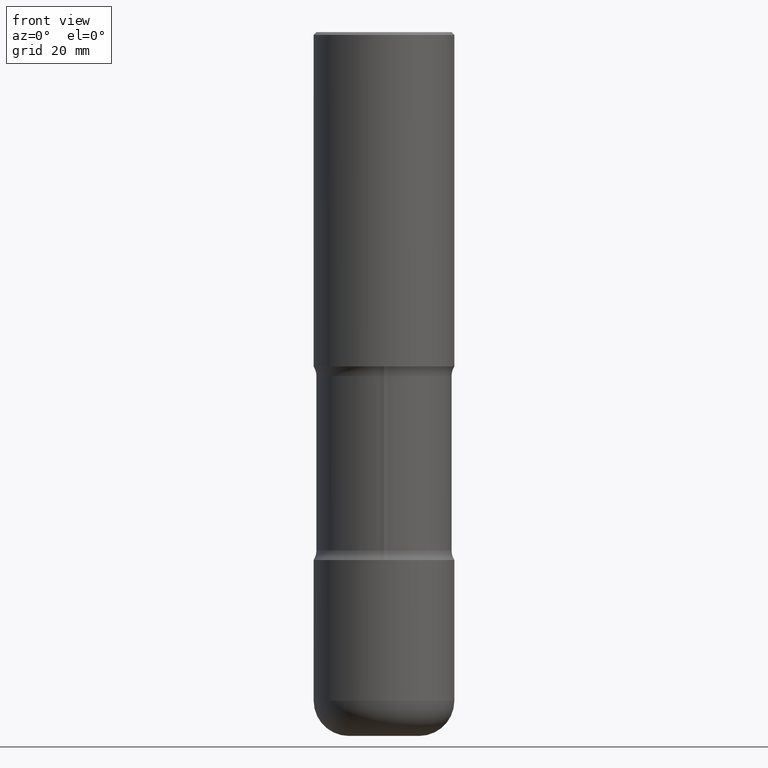
[diagram: clean part render]
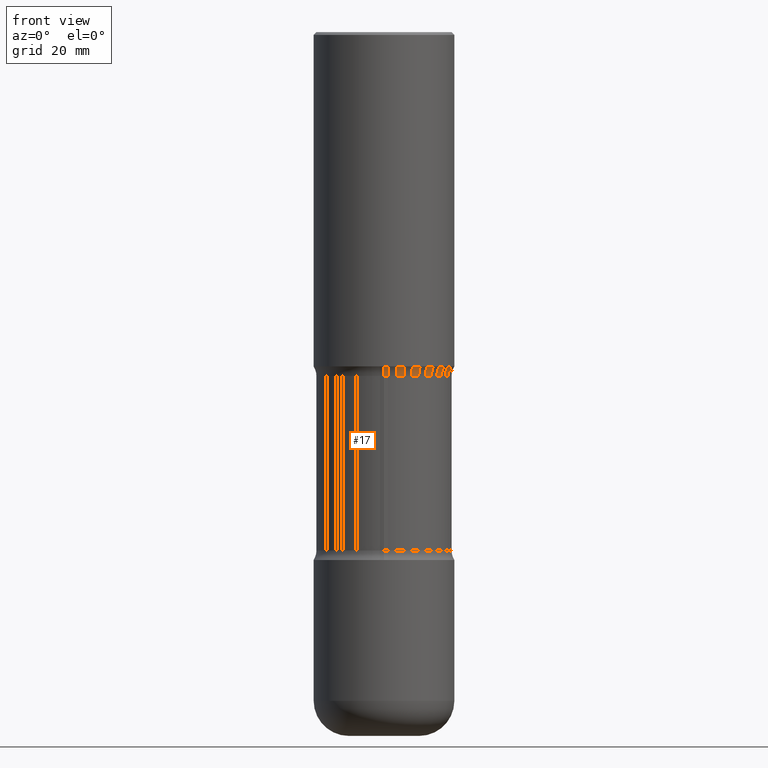
[diagram: same view with one face highlighted and labeled with its STEP entity id]
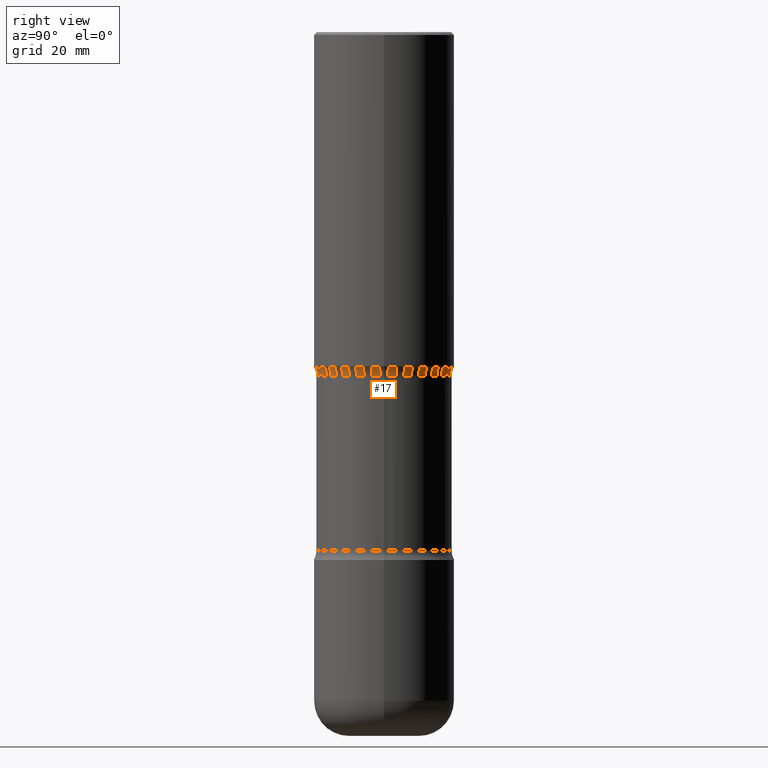
[diagram: same view with one face highlighted and labeled with its STEP entity id]
A machine part, front view. The second image highlights one B-rep face of the part: STEP entity #17.
A second angle (right view) of the same face is appended — the face is thin or edge-on in the first view.
In plain terms, the highlighted toroidal blend (fillet) surface has major radius 15.367 mm and minor (blend) radius 3.175 mm.
Its self-contained STEP definition (entity closure, byte-faithful):
#6 = DIRECTION ( 'NONE',  ( 6.982962677686265922E-15, 1.000000000000000000, -3.278217592397115862E-15 ) ) ;
#17 = ADVANCED_FACE ( 'NONE', ( #545 ), #117, .F. ) ;
#28 = DIRECTION ( 'NONE',  ( 2.445077249876360463E-29, -3.492042069763313983E-15, -1.000000000000000000 ) ) ;
#53 = DIRECTION ( 'NONE',  ( 6.982962677686265922E-15, 1.000000000000000000, -3.492042069763314377E-15 ) ) ;
#87 = ORIENTED_EDGE ( 'NONE', *, *, #797, .F. ) ;
#92 = ORIENTED_EDGE ( 'NONE', *, *, #93, .F. ) ;
#93 = EDGE_CURVE ( 'NONE', #757, #96, #519, .T. ) ;
#96 = VERTEX_POINT ( 'NONE', #126 ) ;
#103 = VERTEX_POINT ( 'NONE', #554 ) ;
#117 = TOROIDAL_SURFACE ( 'NONE', #366, 0.6049999999999998712, 0.1249999999999999445 ) ;
#126 = CARTESIAN_POINT ( 'NONE',  ( -3.430248998885707800E-15, -0.5000000000000083267, -2.374999999999998668 ) ) ;
#144 = AXIS2_PLACEMENT_3D ( 'NONE', #678, #676, #6 ) ;
#177 = AXIS2_PLACEMENT_3D ( 'NONE', #476, #651, #225 ) ;
#192 = CARTESIAN_POINT ( 'NONE',  ( -4.150601288651715033E-15, -0.6050000000000084199, -2.442823299831251127 ) ) ;
#193 = VERTEX_POINT ( 'NONE', #687 ) ;
#225 = DIRECTION ( 'NONE',  ( -6.982962677686265133E-15, -1.000000000000000000, 0.000000000000000000 ) ) ;
#250 = CARTESIAN_POINT ( 'NONE',  ( 5.973848178759570522E-29, -8.529071965452055172E-15, -2.442823299831253347 ) ) ;
#315 = DIRECTION ( 'NONE',  ( 6.860497997771532351E-15, 1.000000000000000000, 0.000000000000000000 ) ) ;
#354 = ORIENTED_EDGE ( 'NONE', *, *, #628, .T. ) ;
#366 = AXIS2_PLACEMENT_3D ( 'NONE', #250, #423, #53 ) ;
#420 = CIRCLE ( 'NONE', #595, 0.4799999999999999267 ) ;
#423 = DIRECTION ( 'NONE',  ( 2.445077249876360463E-29, -3.492042069763313983E-15, -1.000000000000000000 ) ) ;
#440 = DIRECTION ( 'NONE',  ( 1.000000000000000000, -6.860497997771530774E-15, 4.840792012650877593E-29 ) ) ;
#445 = AXIS2_PLACEMENT_3D ( 'NONE', #192, #440, #315 ) ;
#476 = CARTESIAN_POINT ( 'NONE',  ( 4.224692420000249262E-15, 0.6049999999999913225, -2.442823299831255124 ) ) ;
#500 = CIRCLE ( 'NONE', #144, 0.5000000000000000000 ) ;
#519 = CIRCLE ( 'NONE', #445, 0.1249999999999999584 ) ;
#545 = FACE_OUTER_BOUND ( 'NONE', #712, .T. ) ;
#554 = CARTESIAN_POINT ( 'NONE',  ( 3.351822085289467107E-15, 0.4799999999999913780, -2.442823299831254680 ) ) ;
#574 = CARTESIAN_POINT ( 'NONE',  ( 5.974360012043205684E-29, -8.528338991058145120E-15, -2.442823299831252903 ) ) ;
#581 = CARTESIAN_POINT ( 'NONE',  ( -3.361644018907992074E-15, -0.4800000000000085310, -2.442823299831251127 ) ) ;
#595 = AXIS2_PLACEMENT_3D ( 'NONE', #574, #28, #648 ) ;
#597 = ORIENTED_EDGE ( 'NONE', *, *, #742, .T. ) ;
#628 = EDGE_CURVE ( 'NONE', #193, #96, #500, .T. ) ;
#648 = DIRECTION ( 'NONE',  ( 6.982962677686265922E-15, 1.000000000000000000, -3.414809992080329516E-15 ) ) ;
#651 = DIRECTION ( 'NONE',  ( -1.000000000000000000, 6.982962677686265922E-15, -4.883557194083112340E-29 ) ) ;
#676 = DIRECTION ( 'NONE',  ( 2.445077249876360463E-29, -3.492042069763313983E-15, -1.000000000000000000 ) ) ;
#678 = CARTESIAN_POINT ( 'NONE',  ( 5.808526804614267548E-29, -8.291497174737239553E-15, -2.375000000000000000 ) ) ;
#682 = CIRCLE ( 'NONE', #177, 0.1249999999999999584 ) ;
#687 = CARTESIAN_POINT ( 'NONE',  ( 3.491481338843191337E-15, 0.4999999999999917843, -2.375000000000001776 ) ) ;
#712 = EDGE_LOOP ( 'NONE', ( #92, #87, #597, #354 ) ) ;
#742 = EDGE_CURVE ( 'NONE', #103, #193, #682, .T. ) ;
#757 = VERTEX_POINT ( 'NONE', #581 ) ;
#797 = EDGE_CURVE ( 'NONE', #103, #757, #420, .T. ) ;